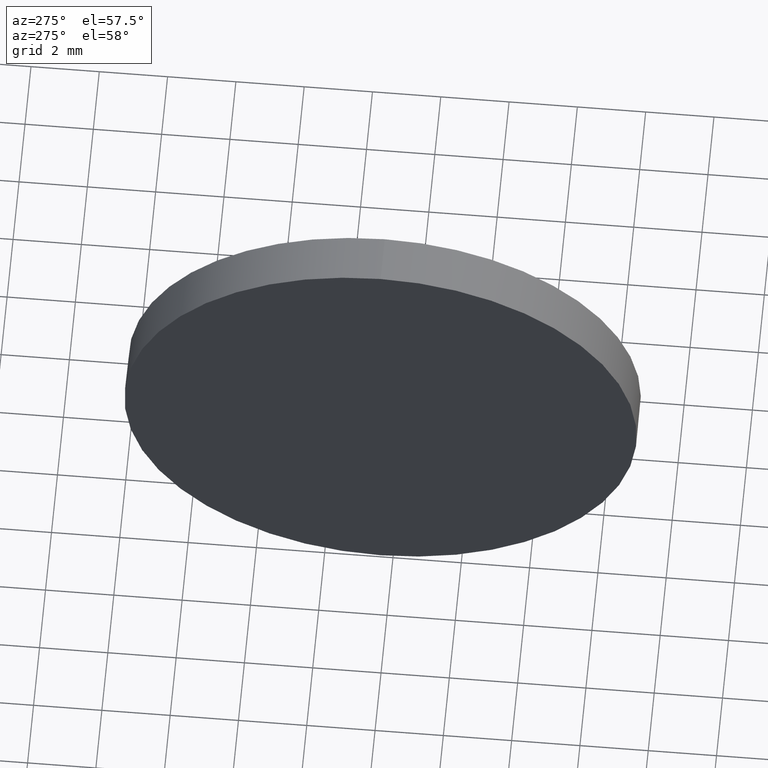
[diagram: clean part render]
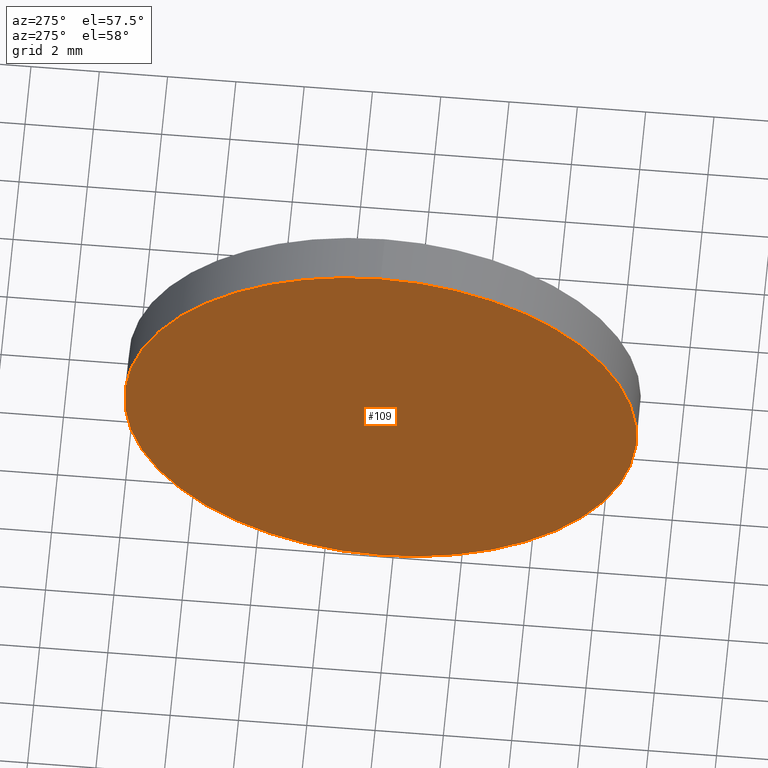
[diagram: same view with one face highlighted and labeled with its STEP entity id]
A machine part, auxiliary view. The second image highlights one B-rep face of the part: STEP entity #109.
In plain terms, the highlighted planar face has unit normal (1, 0, 0).
Its self-contained STEP definition (entity closure, byte-faithful):
#5 = AXIS2_PLACEMENT_3D ( 'NONE', #13, #177, #39 ) ;
#9 = DIRECTION ( 'NONE',  ( -1.000000000000000000, -0.0000000000000000000, -0.0000000000000000000 ) ) ;
#13 = CARTESIAN_POINT ( 'NONE',  ( 559.8480030828359300, 70.35047557403802900, 0.0000000000000000000 ) ) ;
#14 = ORIENTED_EDGE ( 'NONE', *, *, #63, .T. ) ;
#23 = AXIS2_PLACEMENT_3D ( 'NONE', #149, #175, #101 ) ;
#36 = CARTESIAN_POINT ( 'NONE',  ( 559.8480030828359300, 70.35047557403802900, 7.499999999999992900 ) ) ;
#39 = DIRECTION ( 'NONE',  ( 0.0000000000000000000, 0.0000000000000000000, 1.000000000000000000 ) ) ;
#44 = CIRCLE ( 'NONE', #5, 7.499999999999992900 ) ;
#53 = CARTESIAN_POINT ( 'NONE',  ( 559.8480030828359300, 70.35047557403802900, 0.0000000000000000000 ) ) ;
#63 = EDGE_CURVE ( 'NONE', #90, #98, #140, .T. ) ;
#77 = AXIS2_PLACEMENT_3D ( 'NONE', #53, #9, #130 ) ;
#90 = VERTEX_POINT ( 'NONE', #133 ) ;
#98 = VERTEX_POINT ( 'NONE', #36 ) ;
#101 = DIRECTION ( 'NONE',  ( 0.0000000000000000000, 0.0000000000000000000, -1.000000000000000000 ) ) ;
#109 = ADVANCED_FACE ( 'NONE', ( #123 ), #160, .F. ) ;
#123 = FACE_OUTER_BOUND ( 'NONE', #129, .T. ) ;
#129 = EDGE_LOOP ( 'NONE', ( #169, #14 ) ) ;
#130 = DIRECTION ( 'NONE',  ( 0.0000000000000000000, 0.0000000000000000000, 1.000000000000000000 ) ) ;
#133 = CARTESIAN_POINT ( 'NONE',  ( 559.8480030828359300, 70.35047557403802900, -7.499999999999992900 ) ) ;
#140 = CIRCLE ( 'NONE', #77, 7.499999999999992900 ) ;
#142 = EDGE_CURVE ( 'NONE', #98, #90, #44, .T. ) ;
#149 = CARTESIAN_POINT ( 'NONE',  ( 559.8480030828359300, 70.35047557403802900, 0.0000000000000000000 ) ) ;
#160 = PLANE ( 'NONE',  #23 ) ;
#169 = ORIENTED_EDGE ( 'NONE', *, *, #142, .T. ) ;
#175 = DIRECTION ( 'NONE',  ( 1.000000000000000000, 0.0000000000000000000, 0.0000000000000000000 ) ) ;
#177 = DIRECTION ( 'NONE',  ( -1.000000000000000000, -0.0000000000000000000, -0.0000000000000000000 ) ) ;